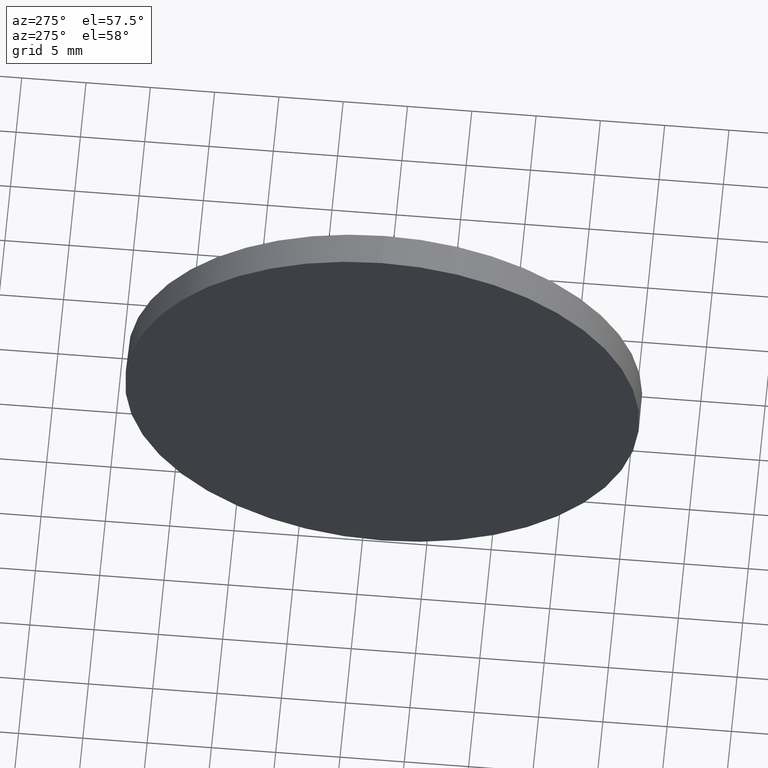
[diagram: clean part render]
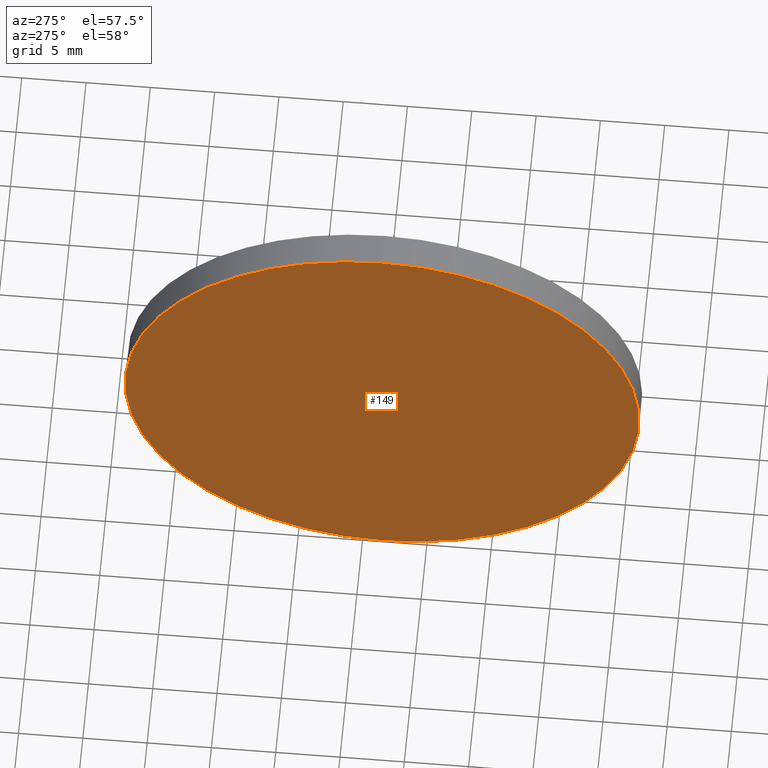
[diagram: same view with one face highlighted and labeled with its STEP entity id]
A machine part, auxiliary view. The second image highlights one B-rep face of the part: STEP entity #149.
In plain terms, the highlighted planar face has unit normal (1, 0, 0).
Its self-contained STEP definition (entity closure, byte-faithful):
#9 = EDGE_CURVE ( 'NONE', #184, #113, #120, .T. ) ;
#38 = CARTESIAN_POINT ( 'NONE',  ( 429.5673721980472200, 108.4341461141712000, -20.00000000000000400 ) ) ;
#42 = CARTESIAN_POINT ( 'NONE',  ( 429.5673721980472200, 108.4341461141712000, 0.0000000000000000000 ) ) ;
#55 = DIRECTION ( 'NONE',  ( 0.0000000000000000000, 0.0000000000000000000, 1.000000000000000000 ) ) ;
#56 = FACE_OUTER_BOUND ( 'NONE', #132, .T. ) ;
#60 = CIRCLE ( 'NONE', #166, 20.00000000000000400 ) ;
#66 = CARTESIAN_POINT ( 'NONE',  ( 429.5673721980472200, 108.4341461141712000, 0.0000000000000000000 ) ) ;
#72 = ORIENTED_EDGE ( 'NONE', *, *, #9, .T. ) ;
#88 = EDGE_CURVE ( 'NONE', #113, #184, #60, .T. ) ;
#91 = DIRECTION ( 'NONE',  ( -1.000000000000000000, -0.0000000000000000000, -0.0000000000000000000 ) ) ;
#95 = DIRECTION ( 'NONE',  ( 0.0000000000000000000, 0.0000000000000000000, 1.000000000000000000 ) ) ;
#97 = DIRECTION ( 'NONE',  ( 1.000000000000000000, 0.0000000000000000000, 0.0000000000000000000 ) ) ;
#103 = AXIS2_PLACEMENT_3D ( 'NONE', #42, #143, #55 ) ;
#113 = VERTEX_POINT ( 'NONE', #38 ) ;
#118 = CARTESIAN_POINT ( 'NONE',  ( 429.5673721980472200, 108.4341461141712000, 0.0000000000000000000 ) ) ;
#120 = CIRCLE ( 'NONE', #103, 20.00000000000000400 ) ;
#129 = AXIS2_PLACEMENT_3D ( 'NONE', #118, #97, #156 ) ;
#132 = EDGE_LOOP ( 'NONE', ( #72, #151 ) ) ;
#135 = PLANE ( 'NONE',  #129 ) ;
#143 = DIRECTION ( 'NONE',  ( -1.000000000000000000, -0.0000000000000000000, -0.0000000000000000000 ) ) ;
#149 = ADVANCED_FACE ( 'NONE', ( #56 ), #135, .F. ) ;
#151 = ORIENTED_EDGE ( 'NONE', *, *, #88, .T. ) ;
#154 = CARTESIAN_POINT ( 'NONE',  ( 429.5673721980472200, 108.4341461141712000, 20.00000000000000400 ) ) ;
#156 = DIRECTION ( 'NONE',  ( 0.0000000000000000000, 0.0000000000000000000, -1.000000000000000000 ) ) ;
#166 = AXIS2_PLACEMENT_3D ( 'NONE', #66, #91, #95 ) ;
#184 = VERTEX_POINT ( 'NONE', #154 ) ;